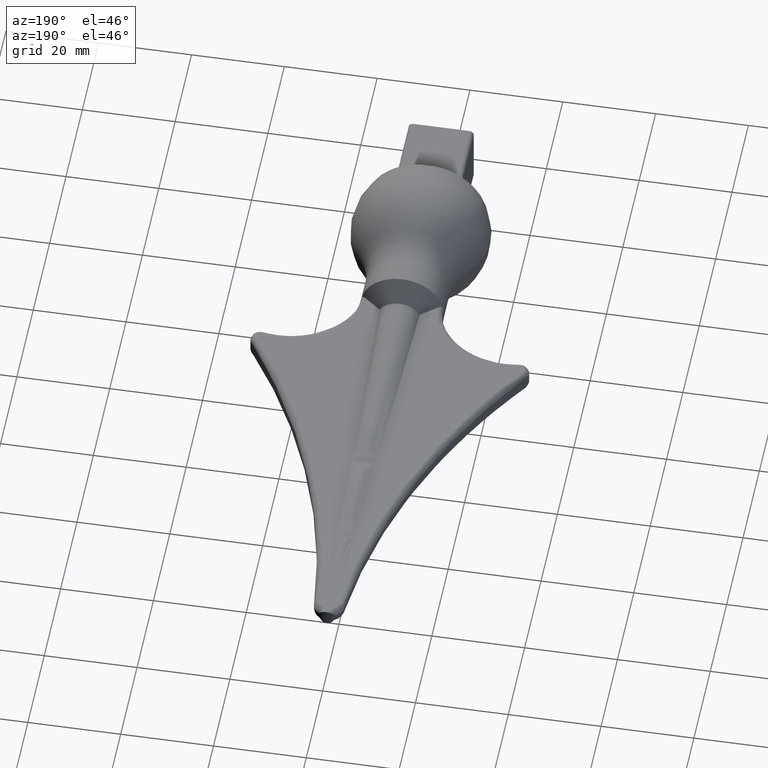
[diagram: clean part render]
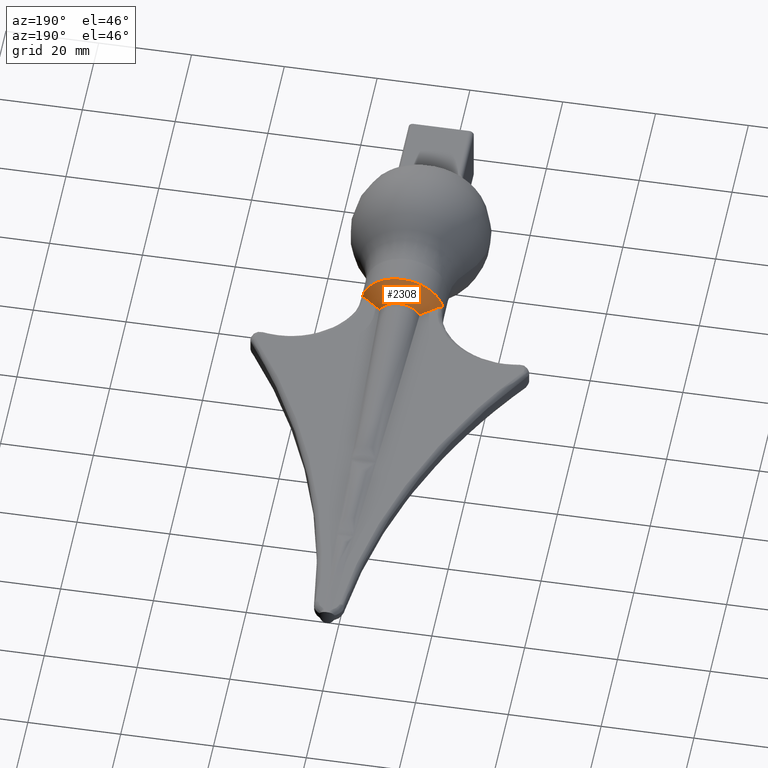
[diagram: same view with one face highlighted and labeled with its STEP entity id]
A machine part, auxiliary view. The second image highlights one B-rep face of the part: STEP entity #2308.
In plain terms, the highlighted conical surface has half-angle 50 deg.
Its self-contained STEP definition (entity closure, byte-faithful):
#443 = ORIENTED_EDGE ( 'NONE', *, *, #11660, .T. ) ;
#697 = CARTESIAN_POINT ( 'NONE',  ( -7.854329753005422354, 3.091869254954670687, 2.467454007842583064 ) ) ;
#720 = CARTESIAN_POINT ( 'NONE',  ( -4.329915638581759652, 5.830165751634949878, 2.438629834193316803 ) ) ;
#1027 = CARTESIAN_POINT ( 'NONE',  ( 4.929701899576531154, 5.389742011390491250, 2.443265873564311352 ) ) ;
#1051 = B_SPLINE_CURVE_WITH_KNOTS ( 'NONE', 3,
 ( #7526, #9621, #9494, #2149, #4216, #6336 ),
 .UNSPECIFIED., .F., .F.,
 ( 4, 2, 4 ),
 ( 0.01532905387034711950, 0.01758067448884619022, 0.01983229510734525747 ),
 .UNSPECIFIED. ) ;
#1077 = CARTESIAN_POINT ( 'NONE',  ( 7.854329753005541370, 3.091869254954576984, 2.467454007842583952 ) ) ;
#1288 = CONICAL_SURFACE ( 'NONE', #11271, 9.000000000000005329, 0.8726646259971592157 ) ;
#1393 = VERTEX_POINT ( 'NONE', #720 ) ;
#1627 = EDGE_CURVE ( 'NONE', #9489, #3165, #13236, .T. ) ;
#1854 = CARTESIAN_POINT ( 'NONE',  ( -8.821560213670181838, 2.448103319404146383, 1.788128236391716142 ) ) ;
#2083 = CARTESIAN_POINT ( 'NONE',  ( 4.329915638581162796, 5.830165751651397166, 2.438629834193143608 ) ) ;
#2126 = CARTESIAN_POINT ( 'NONE',  ( 4.329915638581162796, 5.830165751651397166, 2.438629834193143608 ) ) ;
#2149 = CARTESIAN_POINT ( 'NONE',  ( -6.691889920206447684, 4.020820590539784689, 2.457675572731160329 ) ) ;
#2308 = ADVANCED_FACE ( 'NONE', ( #9697 ), #1288, .T. ) ;
#2409 = EDGE_LOOP ( 'NONE', ( #13324, #5485, #4352, #2799, #5306, #443 ) ) ;
#2429 = AXIS2_PLACEMENT_3D ( 'NONE', #8655, #7727, #12988 ) ;
#2799 = ORIENTED_EDGE ( 'NONE', *, *, #6754, .T. ) ;
#2934 = CIRCLE ( 'NONE', #11503, 4.969414945991792010 ) ;
#2993 = CARTESIAN_POINT ( 'NONE',  ( -8.845820875884893297, 2.448103319404391520, 1.658750442881356646 ) ) ;
#3165 = VERTEX_POINT ( 'NONE', #2126 ) ;
#3693 = VERTEX_POINT ( 'NONE', #7657 ) ;
#3933 = CARTESIAN_POINT ( 'NONE',  ( -8.361742622361131083, 2.714194565437368478, 2.341306032847309648 ) ) ;
#4038 = B_SPLINE_CURVE_WITH_KNOTS ( 'NONE', 3,
 ( #697, #4940, #9189, #10262, #3933, #11322, #4984, #12400, #1854, #2993 ),
 .UNSPECIFIED., .F., .F.,
 ( 4, 2, 2, 2, 4 ),
 ( 0.000000000000000000, 0.0003867724295863570090, 0.0007735448591727140180, 0.001160317288759071027, 0.001547089718345428036 ),
 .UNSPECIFIED. ) ;
#4068 = CARTESIAN_POINT ( 'NONE',  ( 8.771148627330086711, 2.468451258509392510, 1.909113956213648100 ) ) ;
#4216 = CARTESIAN_POINT ( 'NONE',  ( -7.274097924818485161, 3.557593012779568742, 2.462551652497057653 ) ) ;
#4352 = ORIENTED_EDGE ( 'NONE', *, *, #1627, .T. ) ;
#4508 = EDGE_CURVE ( 'NONE', #12624, #9489, #5158, .T. ) ;
#4639 = DIRECTION ( 'NONE',  ( 1.000000000000000000, 1.445602896647338424E-16, 0.000000000000000000 ) ) ;
#4888 = VERTEX_POINT ( 'NONE', #10158 ) ;
#4940 = CARTESIAN_POINT ( 'NONE',  ( -7.956303315276803900, 3.010020055526541505, 2.468315578362879403 ) ) ;
#4984 = CARTESIAN_POINT ( 'NONE',  ( -8.633096524512463787, 2.541506878513616119, 2.119484244990500699 ) ) ;
#5034 = CARTESIAN_POINT ( 'NONE',  ( 8.269956969702676020, 2.773934264865004273, 2.408560864957401293 ) ) ;
#5158 = B_SPLINE_CURVE_WITH_KNOTS ( 'NONE', 3,
 ( #12636, #9482, #4068, #6281, #13699, #5034, #12444, #6102 ),
 .UNSPECIFIED., .F., .F.,
 ( 4, 2, 2, 4 ),
 ( 2.168404344971008868E-19, 0.0003878778224250732068, 0.0007757556448501461968, 0.001551511289700296730 ),
 .UNSPECIFIED. ) ;
#5306 = ORIENTED_EDGE ( 'NONE', *, *, #11336, .T. ) ;
#5485 = ORIENTED_EDGE ( 'NONE', *, *, #4508, .T. ) ;
#5860 = CARTESIAN_POINT ( 'NONE',  ( 7.854329753005541370, 3.091869254954576984, 2.467454007842583952 ) ) ;
#6102 = CARTESIAN_POINT ( 'NONE',  ( 7.854329753005541370, 3.091869254954576984, 2.467454007842583952 ) ) ;
#6240 = CARTESIAN_POINT ( 'NONE',  ( 7.274186412509609845, 3.557521988030444504, 2.462552400125995522 ) ) ;
#6281 = CARTESIAN_POINT ( 'NONE',  ( 8.634613996008829062, 2.540648689516391556, 2.117553715234846035 ) ) ;
#6336 = CARTESIAN_POINT ( 'NONE',  ( -7.854329753005422354, 3.091869254954670687, 2.467454007842583064 ) ) ;
#6754 = EDGE_CURVE ( 'NONE', #3165, #1393, #2934, .T. ) ;
#6905 = DIRECTION ( 'NONE',  ( 1.224646799147353454E-16, -1.000000000000000000, 0.000000000000000000 ) ) ;
#7526 = CARTESIAN_POINT ( 'NONE',  ( -4.329915638581759652, 5.830165751634949878, 2.438629834193316803 ) ) ;
#7657 = CARTESIAN_POINT ( 'NONE',  ( -7.854329753005422354, 3.091869254954670687, 2.467454007842583064 ) ) ;
#7727 = DIRECTION ( 'NONE',  ( -1.224646799147353454E-16, 1.000000000000000000, -0.000000000000000000 ) ) ;
#7911 = CARTESIAN_POINT ( 'NONE',  ( -2.998061894090599869E-16, 2.448103319404392408, 0.000000000000000000 ) ) ;
#8073 = EDGE_CURVE ( 'NONE', #4888, #12624, #12855, .T. ) ;
#8655 = CARTESIAN_POINT ( 'NONE',  ( -2.998061894090599869E-16, 2.448103319404392408, 0.000000000000000000 ) ) ;
#9123 = DIRECTION ( 'NONE',  ( 0.000000000000000000, -1.000000000000000000, -3.502684209632172712E-18 ) ) ;
#9189 = CARTESIAN_POINT ( 'NONE',  ( -8.058127303597682811, 2.932092615736566543, 2.453660353984397524 ) ) ;
#9482 = CARTESIAN_POINT ( 'NONE',  ( 8.821600033229850979, 2.448103319404358658, 1.787915885766044877 ) ) ;
#9489 = VERTEX_POINT ( 'NONE', #5860 ) ;
#9494 = CARTESIAN_POINT ( 'NONE',  ( -5.519242896518132824, 4.936878853375535670, 2.448032854174994721 ) ) ;
#9621 = CARTESIAN_POINT ( 'NONE',  ( -4.928880873710288490, 5.390344891626819290, 2.443259527456560054 ) ) ;
#9697 = FACE_OUTER_BOUND ( 'NONE', #2409, .T. ) ;
#10158 = CARTESIAN_POINT ( 'NONE',  ( -8.845820875884893297, 2.448103319404391520, 1.658750442881356646 ) ) ;
#10262 = CARTESIAN_POINT ( 'NONE',  ( -8.260897521771484620, 2.784076806233640955, 2.390446037489483810 ) ) ;
#11271 = AXIS2_PLACEMENT_3D ( 'NONE', #7911, #6905, #4639 ) ;
#11322 = CARTESIAN_POINT ( 'NONE',  ( -8.547212520791950041, 2.593318540515497261, 2.206349833963108242 ) ) ;
#11336 = EDGE_CURVE ( 'NONE', #1393, #3693, #1051, .T. ) ;
#11503 = AXIS2_PLACEMENT_3D ( 'NONE', #13533, #9123, #12287 ) ;
#11604 = CARTESIAN_POINT ( 'NONE',  ( 6.692080315802235724, 4.020668636194784540, 2.457677172250582576 ) ) ;
#11660 = EDGE_CURVE ( 'NONE', #3693, #4888, #4038, .T. ) ;
#12287 = DIRECTION ( 'NONE',  ( 0.000000000000000000, 0.000000000000000000, 1.000000000000000000 ) ) ;
#12400 = CARTESIAN_POINT ( 'NONE',  ( -8.770851970281208665, 2.468553083590960373, 1.909947896695641578 ) ) ;
#12444 = CARTESIAN_POINT ( 'NONE',  ( 8.058160772089832946, 2.928264048280828646, 2.469176167912807696 ) ) ;
#12624 = VERTEX_POINT ( 'NONE', #13286 ) ;
#12636 = CARTESIAN_POINT ( 'NONE',  ( 8.845820875884943035, 2.448103319404393297, 1.658750442881085752 ) ) ;
#12855 = CIRCLE ( 'NONE', #2429, 9.000000000000005329 ) ;
#12988 = DIRECTION ( 'NONE',  ( -1.000000000000000000, -1.445602896647338424E-16, 0.000000000000000000 ) ) ;
#13236 = B_SPLINE_CURVE_WITH_KNOTS ( 'NONE', 3,
 ( #1077, #6240, #11604, #13647, #1027, #2083 ),
 .UNSPECIFIED., .F., .F.,
 ( 4, 2, 4 ),
 ( 0.001026231712780039914, 0.003257842796032485097, 0.005489453879284929630 ),
 .UNSPECIFIED. ) ;
#13286 = CARTESIAN_POINT ( 'NONE',  ( 8.845820875884943035, 2.448103319404393297, 1.658750442881085752 ) ) ;
#13324 = ORIENTED_EDGE ( 'NONE', *, *, #8073, .T. ) ;
#13533 = CARTESIAN_POINT ( 'NONE',  ( -7.139893826258384057E-16, 5.830165751651379402, 0.000000000000000000 ) ) ;
#13647 = CARTESIAN_POINT ( 'NONE',  ( 5.519696244205701596, 4.936527921161870225, 2.448036548198297524 ) ) ;
#13699 = CARTESIAN_POINT ( 'NONE',  ( 8.548760649620939844, 2.592349830151635448, 2.204987053021373100 ) ) ;